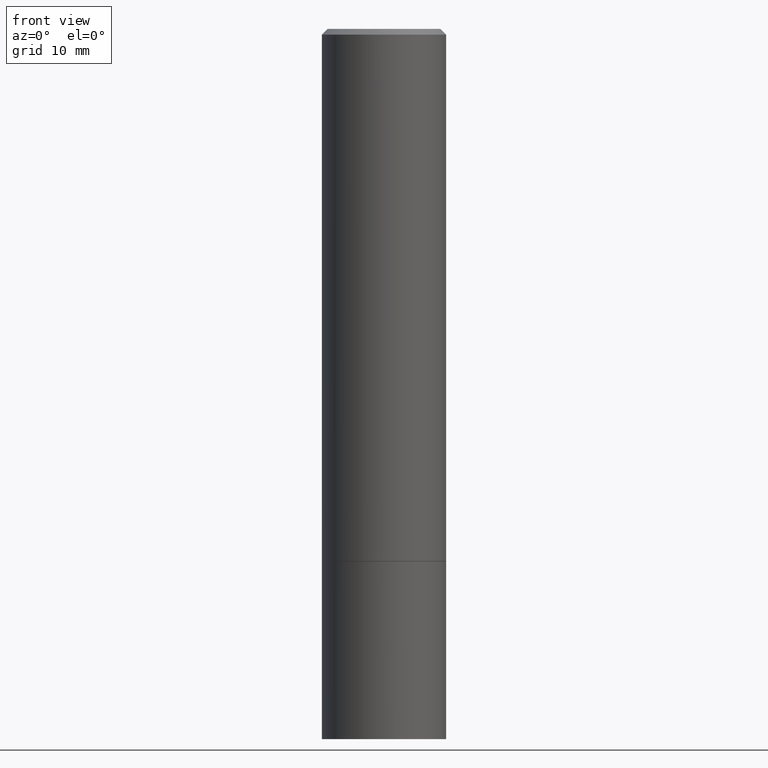
[diagram: clean part render]
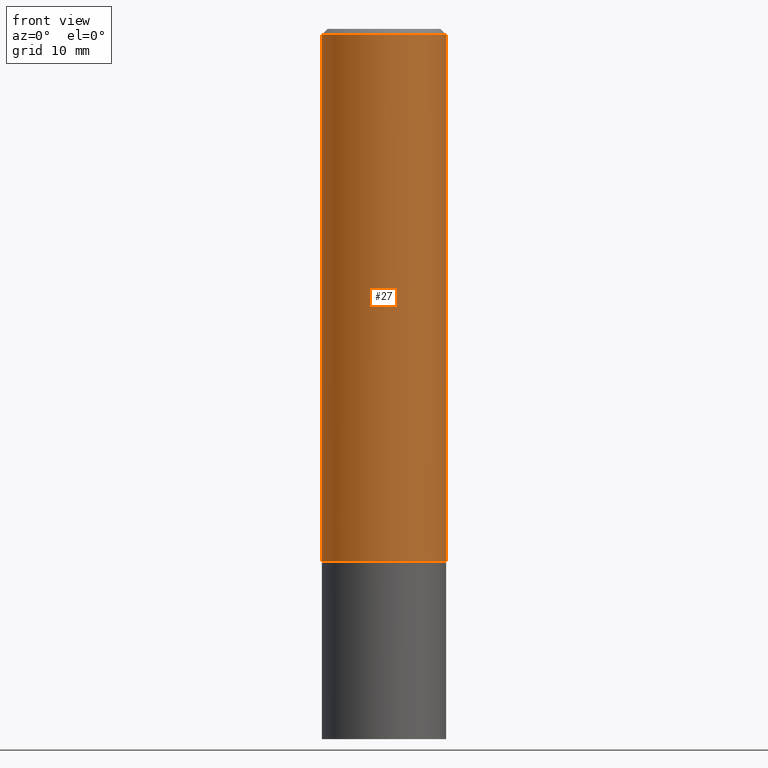
[diagram: same view with one face highlighted and labeled with its STEP entity id]
A machine part, front view. The second image highlights one B-rep face of the part: STEP entity #27.
In plain terms, the highlighted cylindrical surface (partial cylindrical patch) has radius 5.5562 mm, axis along (-0, 0, 1).
Its self-contained STEP definition (entity closure, byte-faithful):
#5 = AXIS2_PLACEMENT_3D ( 'NONE', #137, #243, #55 ) ;
#13 = EDGE_LOOP ( 'NONE', ( #21, #19, #161, #298 ) ) ;
#19 = ORIENTED_EDGE ( 'NONE', *, *, #170, .T. ) ;
#21 = ORIENTED_EDGE ( 'NONE', *, *, #241, .F. ) ;
#26 = DIRECTION ( 'NONE',  ( 1.000000000000000000, -6.982962677686266711E-15, 0.000000000000000000 ) ) ;
#27 = ADVANCED_FACE ( 'NONE', ( #107 ), #58, .T. ) ;
#31 = DIRECTION ( 'NONE',  ( -2.445468806185136877E-29, 3.491481338843145188E-15, 1.000000000000000000 ) ) ;
#52 = CARTESIAN_POINT ( 'NONE',  ( 0.000000000000000000, 0.000000000000000000, 0.000000000000000000 ) ) ;
#53 = CARTESIAN_POINT ( 'NONE',  ( 4.890937612370288923E-31, -6.982962677686312563E-17, -0.02000000000000006287 ) ) ;
#55 = DIRECTION ( 'NONE',  ( 1.000000000000000000, -6.982962677686269077E-15, 0.000000000000000000 ) ) ;
#58 = CYLINDRICAL_SURFACE ( 'NONE', #123, 0.2187499999999998612 ) ;
#78 = VECTOR ( 'NONE', #31, 39.37007874015748143 ) ;
#82 = EDGE_CURVE ( 'NONE', #105, #263, #274, .T. ) ;
#105 = VERTEX_POINT ( 'NONE', #168 ) ;
#107 = FACE_OUTER_BOUND ( 'NONE', #13, .T. ) ;
#123 = AXIS2_PLACEMENT_3D ( 'NONE', #52, #276, #271 ) ;
#130 = CARTESIAN_POINT ( 'NONE',  ( 0.2187499999999997502, -1.570563563789383855E-15, -0.02000000000000006287 ) ) ;
#137 = CARTESIAN_POINT ( 'NONE',  ( 4.582808542790945516E-29, -6.543036028992054911E-15, -1.874000000000000110 ) ) ;
#161 = ORIENTED_EDGE ( 'NONE', *, *, #82, .T. ) ;
#162 = EDGE_CURVE ( 'NONE', #206, #263, #262, .T. ) ;
#163 = AXIS2_PLACEMENT_3D ( 'NONE', #53, #337, #26 ) ;
#168 = CARTESIAN_POINT ( 'NONE',  ( 0.2187499999999999445, -8.070559114735925754E-15, -1.874000000000000110 ) ) ;
#170 = EDGE_CURVE ( 'NONE', #229, #105, #294, .T. ) ;
#184 = DIRECTION ( 'NONE',  ( -2.445468806185136877E-29, 3.491481338843145188E-15, 1.000000000000000000 ) ) ;
#203 = CARTESIAN_POINT ( 'NONE',  ( -0.2187499999999999445, -1.752120593409238962E-15, -1.874000000000000110 ) ) ;
#206 = VERTEX_POINT ( 'NONE', #251 ) ;
#209 = LINE ( 'NONE', #329, #249 ) ;
#220 = CARTESIAN_POINT ( 'NONE',  ( 0.2187499999999998612, -1.527523085743869857E-15, 1.066663669705360324E-29 ) ) ;
#229 = VERTEX_POINT ( 'NONE', #203 ) ;
#241 = EDGE_CURVE ( 'NONE', #229, #206, #209, .T. ) ;
#243 = DIRECTION ( 'NONE',  ( -2.445468806185136597E-29, 3.491481338843145583E-15, 1.000000000000000000 ) ) ;
#249 = VECTOR ( 'NONE', #184, 39.37007874015748143 ) ;
#251 = CARTESIAN_POINT ( 'NONE',  ( -0.2187499999999997502, 1.457693458967005967E-15, -0.02000000000000006287 ) ) ;
#262 = CIRCLE ( 'NONE', #163, 0.2187499999999997502 ) ;
#263 = VERTEX_POINT ( 'NONE', #130 ) ;
#271 = DIRECTION ( 'NONE',  ( 1.000000000000000000, -6.982962677686266711E-15, 4.876176775795935793E-29 ) ) ;
#274 = LINE ( 'NONE', #220, #78 ) ;
#276 = DIRECTION ( 'NONE',  ( -2.445468806185136597E-29, 3.491481338843145583E-15, 1.000000000000000000 ) ) ;
#294 = CIRCLE ( 'NONE', #5, 0.2187499999999999445 ) ;
#298 = ORIENTED_EDGE ( 'NONE', *, *, #162, .F. ) ;
#329 = CARTESIAN_POINT ( 'NONE',  ( -0.2187499999999998612, 1.554312234475218171E-15, -1.076017050993259922E-29 ) ) ;
#337 = DIRECTION ( 'NONE',  ( -2.445468806185136597E-29, 3.491481338843145583E-15, 1.000000000000000000 ) ) ;